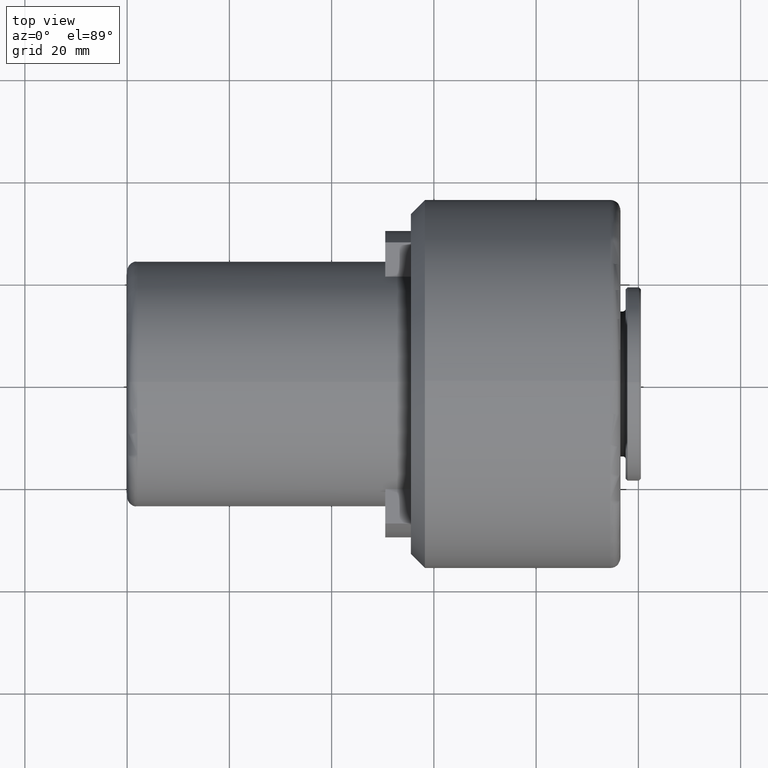
[diagram: clean part render]
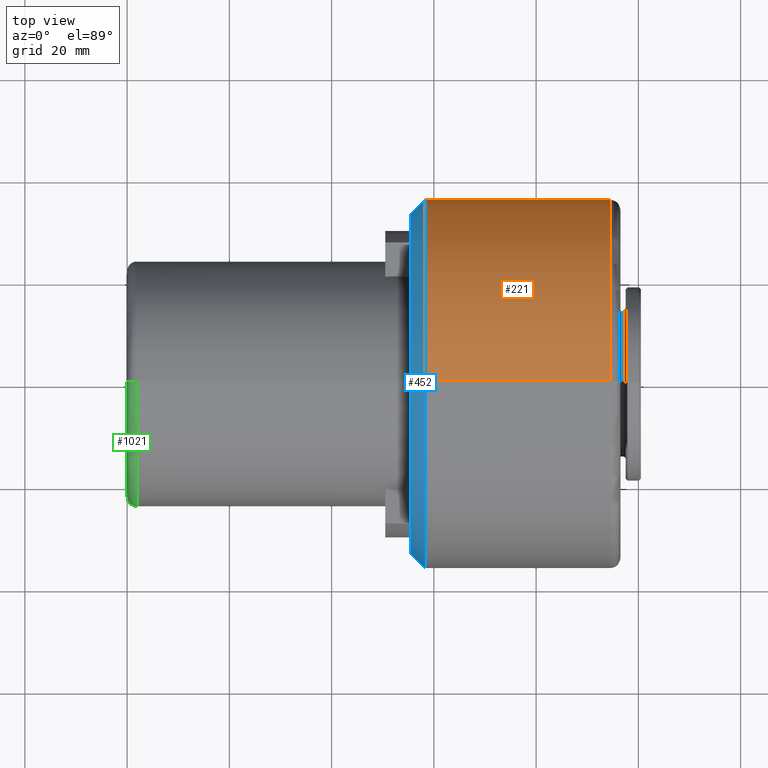
[diagram: same view with three faces highlighted in distinct colors, each labeled with its STEP entity id]
A machine part, top view with three faces highlighted in distinct colors.
Their STEP definitions:

[orange] entity #221 — the highlighted cylindrical surface (partial cylindrical patch) has radius 36 mm, axis along (-1, 0, 0).
#18 = AXIS2_PLACEMENT_3D ( 'NONE', #924, #435, #560 ) ;
#30 = VERTEX_POINT ( 'NONE', #1229 ) ;
#66 = LINE ( 'NONE', #957, #613 ) ;
#96 = LINE ( 'NONE', #108, #1193 ) ;
#108 = CARTESIAN_POINT ( 'NONE',  ( 73.59999999999999400, 0.0000000000000000000, 36.00000000000001400 ) ) ;
#113 = CIRCLE ( 'NONE', #1301, 36.00000000000002800 ) ;
#126 = EDGE_CURVE ( 'NONE', #185, #604, #597, .T. ) ;
#184 = DIRECTION ( 'NONE',  ( 1.927470528863117600E-016, -8.881784197001252300E-016, -1.000000000000000000 ) ) ;
#185 = VERTEX_POINT ( 'NONE', #382 ) ;
#221 = ADVANCED_FACE ( 'NONE', ( #1106 ), #1066, .T. ) ;
#227 = VERTEX_POINT ( 'NONE', #1036 ) ;
#266 = VERTEX_POINT ( 'NONE', #1134 ) ;
#305 = ORIENTED_EDGE ( 'NONE', *, *, #126, .T. ) ;
#382 = CARTESIAN_POINT ( 'NONE',  ( 94.50000000000000000, 0.0000000000000000000, 36.00000000000001400 ) ) ;
#390 = DIRECTION ( 'NONE',  ( 1.927470528863117600E-016, 0.0000000000000000000, -1.000000000000000000 ) ) ;
#392 = EDGE_CURVE ( 'NONE', #30, #266, #1032, .T. ) ;
#420 = DIRECTION ( 'NONE',  ( -1.000000000000000000, 0.0000000000000000000, 0.0000000000000000000 ) ) ;
#435 = DIRECTION ( 'NONE',  ( -1.000000000000000000, 0.0000000000000000000, 0.0000000000000000000 ) ) ;
#437 = EDGE_CURVE ( 'NONE', #266, #227, #113, .T. ) ;
#491 = CARTESIAN_POINT ( 'NONE',  ( 94.50000000000000000, 4.408728476930472400E-015, -36.00000000000001400 ) ) ;
#509 = CARTESIAN_POINT ( 'NONE',  ( 58.25000000000001400, 0.0000000000000000000, 2.869467403871423700E-016 ) ) ;
#540 = ORIENTED_EDGE ( 'NONE', *, *, #1045, .T. ) ;
#544 = ORIENTED_EDGE ( 'NONE', *, *, #437, .F. ) ;
#560 = DIRECTION ( 'NONE',  ( 0.0000000000000000000, 0.0000000000000000000, 1.000000000000000000 ) ) ;
#597 = CIRCLE ( 'NONE', #18, 36.00000000000001400 ) ;
#604 = VERTEX_POINT ( 'NONE', #491 ) ;
#613 = VECTOR ( 'NONE', #1070, 1000.000000000000000 ) ;
#733 = DIRECTION ( 'NONE',  ( -1.000000000000000000, -0.0000000000000000000, -1.043442692316876300E-016 ) ) ;
#752 = DIRECTION ( 'NONE',  ( -1.000000000000000000, 0.0000000000000000000, 0.0000000000000000000 ) ) ;
#858 = EDGE_LOOP ( 'NONE', ( #305, #540, #544, #984, #1329 ) ) ;
#883 = DIRECTION ( 'NONE',  ( 0.0000000000000000000, 0.0000000000000000000, 1.000000000000000000 ) ) ;
#918 = DIRECTION ( 'NONE',  ( -1.000000000000000000, -0.0000000000000000000, -1.043442692316876300E-016 ) ) ;
#924 = CARTESIAN_POINT ( 'NONE',  ( 94.50000000000000000, 0.0000000000000000000, 0.0000000000000000000 ) ) ;
#926 = CARTESIAN_POINT ( 'NONE',  ( 58.25000000000001400, 0.0000000000000000000, 2.869467403871423700E-016 ) ) ;
#954 = AXIS2_PLACEMENT_3D ( 'NONE', #926, #733, #390 ) ;
#957 = CARTESIAN_POINT ( 'NONE',  ( 73.59999999999999400, 4.408728476930472400E-015, -36.00000000000001400 ) ) ;
#984 = ORIENTED_EDGE ( 'NONE', *, *, #392, .F. ) ;
#1032 = CIRCLE ( 'NONE', #954, 36.00000000000002800 ) ;
#1036 = CARTESIAN_POINT ( 'NONE',  ( 58.25000000000002100, 4.408728476930474800E-015, -36.00000000000002800 ) ) ;
#1041 = EDGE_CURVE ( 'NONE', #185, #30, #96, .T. ) ;
#1045 = EDGE_CURVE ( 'NONE', #604, #227, #66, .T. ) ;
#1066 = CYLINDRICAL_SURFACE ( 'NONE', #1157, 36.00000000000001400 ) ;
#1070 = DIRECTION ( 'NONE',  ( -1.000000000000000000, 0.0000000000000000000, 0.0000000000000000000 ) ) ;
#1106 = FACE_OUTER_BOUND ( 'NONE', #858, .T. ) ;
#1134 = CARTESIAN_POINT ( 'NONE',  ( 58.25000000000001400, 36.00000000000001400, 0.0000000000000000000 ) ) ;
#1157 = AXIS2_PLACEMENT_3D ( 'NONE', #1316, #420, #883 ) ;
#1193 = VECTOR ( 'NONE', #752, 1000.000000000000000 ) ;
#1229 = CARTESIAN_POINT ( 'NONE',  ( 58.25000000000000700, 0.0000000000000000000, 36.00000000000002800 ) ) ;
#1301 = AXIS2_PLACEMENT_3D ( 'NONE', #509, #918, #184 ) ;
#1316 = CARTESIAN_POINT ( 'NONE',  ( 73.59999999999999400, 0.0000000000000000000, 0.0000000000000000000 ) ) ;
#1329 = ORIENTED_EDGE ( 'NONE', *, *, #1041, .F. ) ;

[blue] entity #452 — the highlighted conical surface has half-angle 45 deg.
#30 = VERTEX_POINT ( 'NONE', #1229 ) ;
#87 = CARTESIAN_POINT ( 'NONE',  ( 58.25000000000001400, -36.00000000000001400, 4.408728476930473200E-015 ) ) ;
#152 = EDGE_CURVE ( 'NONE', #190, #30, #803, .T. ) ;
#161 = CARTESIAN_POINT ( 'NONE',  ( 58.25000000000001400, 0.0000000000000000000, 2.869467403871423700E-016 ) ) ;
#164 = DIRECTION ( 'NONE',  ( 0.0000000000000000000, 1.000000000000000000, 0.0000000000000000000 ) ) ;
#190 = VERTEX_POINT ( 'NONE', #87 ) ;
#213 = EDGE_CURVE ( 'NONE', #547, #190, #852, .T. ) ;
#220 = ORIENTED_EDGE ( 'NONE', *, *, #384, .T. ) ;
#262 = CIRCLE ( 'NONE', #670, 33.24999999999999300 ) ;
#266 = VERTEX_POINT ( 'NONE', #1134 ) ;
#378 = CARTESIAN_POINT ( 'NONE',  ( 55.49999999999999300, -33.24999999999999300, 4.240339542047711600E-015 ) ) ;
#384 = EDGE_CURVE ( 'NONE', #431, #547, #262, .T. ) ;
#390 = DIRECTION ( 'NONE',  ( 1.927470528863117600E-016, 0.0000000000000000000, -1.000000000000000000 ) ) ;
#392 = EDGE_CURVE ( 'NONE', #30, #266, #1032, .T. ) ;
#393 = DIRECTION ( 'NONE',  ( 0.7071067811865485700, -0.7071067811865465700, 8.659560562354924200E-017 ) ) ;
#431 = VERTEX_POINT ( 'NONE', #937 ) ;
#452 = ADVANCED_FACE ( 'NONE', ( #931 ), #637, .T. ) ;
#533 = VECTOR ( 'NONE', #685, 1000.000000000000000 ) ;
#539 = EDGE_LOOP ( 'NONE', ( #220, #995, #869, #1256, #998 ) ) ;
#547 = VERTEX_POINT ( 'NONE', #378 ) ;
#586 = VECTOR ( 'NONE', #393, 1000.000000000000000 ) ;
#616 = DIRECTION ( 'NONE',  ( 0.0000000000000000000, 1.000000000000000000, 0.0000000000000000000 ) ) ;
#637 = CONICAL_SURFACE ( 'NONE', #1167, 36.00000000000002100, 0.7853981633974470600 ) ;
#670 = AXIS2_PLACEMENT_3D ( 'NONE', #1296, #1037, #164 ) ;
#685 = DIRECTION ( 'NONE',  ( 0.7071067811865483500, 0.7071067811865468000, 0.0000000000000000000 ) ) ;
#733 = DIRECTION ( 'NONE',  ( -1.000000000000000000, -0.0000000000000000000, -1.043442692316876300E-016 ) ) ;
#803 = CIRCLE ( 'NONE', #895, 36.00000000000002800 ) ;
#816 = DIRECTION ( 'NONE',  ( 1.000000000000000000, 9.637352644315590300E-017, -0.0000000000000000000 ) ) ;
#852 = LINE ( 'NONE', #1345, #586 ) ;
#869 = ORIENTED_EDGE ( 'NONE', *, *, #152, .T. ) ;
#895 = AXIS2_PLACEMENT_3D ( 'NONE', #161, #1174, #1048 ) ;
#926 = CARTESIAN_POINT ( 'NONE',  ( 58.25000000000001400, 0.0000000000000000000, 2.869467403871423700E-016 ) ) ;
#931 = FACE_OUTER_BOUND ( 'NONE', #539, .T. ) ;
#937 = CARTESIAN_POINT ( 'NONE',  ( 55.49999999999999300, 33.24999999999999300, 0.0000000000000000000 ) ) ;
#954 = AXIS2_PLACEMENT_3D ( 'NONE', #926, #733, #390 ) ;
#995 = ORIENTED_EDGE ( 'NONE', *, *, #213, .T. ) ;
#998 = ORIENTED_EDGE ( 'NONE', *, *, #1221, .F. ) ;
#1006 = CARTESIAN_POINT ( 'NONE',  ( 58.25000000000002100, 0.0000000000000000000, 0.0000000000000000000 ) ) ;
#1032 = CIRCLE ( 'NONE', #954, 36.00000000000002800 ) ;
#1037 = DIRECTION ( 'NONE',  ( 1.000000000000000000, 9.637352644315590300E-017, -0.0000000000000000000 ) ) ;
#1048 = DIRECTION ( 'NONE',  ( 1.927470528863117600E-016, 0.0000000000000000000, -1.000000000000000000 ) ) ;
#1051 = LINE ( 'NONE', #1103, #533 ) ;
#1103 = CARTESIAN_POINT ( 'NONE',  ( 58.25000000000002100, 36.00000000000002100, 0.0000000000000000000 ) ) ;
#1134 = CARTESIAN_POINT ( 'NONE',  ( 58.25000000000001400, 36.00000000000001400, 0.0000000000000000000 ) ) ;
#1167 = AXIS2_PLACEMENT_3D ( 'NONE', #1006, #816, #616 ) ;
#1174 = DIRECTION ( 'NONE',  ( -1.000000000000000000, -0.0000000000000000000, -1.043442692316876300E-016 ) ) ;
#1221 = EDGE_CURVE ( 'NONE', #431, #266, #1051, .T. ) ;
#1229 = CARTESIAN_POINT ( 'NONE',  ( 58.25000000000000700, 0.0000000000000000000, 36.00000000000002800 ) ) ;
#1256 = ORIENTED_EDGE ( 'NONE', *, *, #392, .T. ) ;
#1296 = CARTESIAN_POINT ( 'NONE',  ( 55.49999999999999300, -2.650271977186816100E-016, 0.0000000000000000000 ) ) ;
#1345 = CARTESIAN_POINT ( 'NONE',  ( 58.25000000000002100, -36.00000000000002100, 4.408728476930474000E-015 ) ) ;

[green] entity #1021 — the highlighted toroidal blend (fillet) surface has major radius 22 mm and minor (blend) radius 2 mm.
#6 = CIRCLE ( 'NONE', #1261, 22.00000000000000000 ) ;
#8 = CIRCLE ( 'NONE', #1087, 2.000000000000001800 ) ;
#14 = ORIENTED_EDGE ( 'NONE', *, *, #1187, .F. ) ;
#44 = CARTESIAN_POINT ( 'NONE',  ( 0.0000000000000000000, 2.816687638038912400E-015, -22.00000000000000700 ) ) ;
#47 = CIRCLE ( 'NONE', #165, 24.00000000000000000 ) ;
#72 = CARTESIAN_POINT ( 'NONE',  ( 2.000000000000001800, 0.0000000000000000000, 23.99999999999999300 ) ) ;
#75 = CARTESIAN_POINT ( 'NONE',  ( 0.0000000000000000000, 0.0000000000000000000, -7.733975497063264400E-015 ) ) ;
#101 = DIRECTION ( 'NONE',  ( -1.000000000000000000, 0.0000000000000000000, 0.0000000000000000000 ) ) ;
#106 = AXIS2_PLACEMENT_3D ( 'NONE', #251, #981, #364 ) ;
#107 = EDGE_CURVE ( 'NONE', #724, #350, #47, .T. ) ;
#109 = CARTESIAN_POINT ( 'NONE',  ( 2.000000000000001800, 0.0000000000000000000, 21.99999999999999300 ) ) ;
#138 = EDGE_CURVE ( 'NONE', #724, #1139, #8, .T. ) ;
#165 = AXIS2_PLACEMENT_3D ( 'NONE', #473, #1116, #535 ) ;
#191 = DIRECTION ( 'NONE',  ( 0.0000000000000000000, 0.0000000000000000000, 1.000000000000000000 ) ) ;
#251 = CARTESIAN_POINT ( 'NONE',  ( 2.000000000000001800, 2.694222958124176800E-015, -22.00000000000000700 ) ) ;
#308 = DIRECTION ( 'NONE',  ( 0.0000000000000000000, -1.000000000000000000, 0.0000000000000000000 ) ) ;
#350 = VERTEX_POINT ( 'NONE', #1383 ) ;
#364 = DIRECTION ( 'NONE',  ( 0.0000000000000000000, -1.224646799147351500E-016, 1.000000000000000000 ) ) ;
#470 = ORIENTED_EDGE ( 'NONE', *, *, #727, .F. ) ;
#473 = CARTESIAN_POINT ( 'NONE',  ( 2.000000000000001800, 0.0000000000000000000, -7.733975497063264400E-015 ) ) ;
#535 = DIRECTION ( 'NONE',  ( 0.0000000000000000000, 0.0000000000000000000, 1.000000000000000000 ) ) ;
#546 = CIRCLE ( 'NONE', #106, 2.000000000000001800 ) ;
#626 = DIRECTION ( 'NONE',  ( 0.0000000000000000000, 0.0000000000000000000, -1.000000000000000000 ) ) ;
#705 = FACE_OUTER_BOUND ( 'NONE', #730, .T. ) ;
#724 = VERTEX_POINT ( 'NONE', #72 ) ;
#727 = EDGE_CURVE ( 'NONE', #1307, #1139, #6, .T. ) ;
#730 = EDGE_LOOP ( 'NONE', ( #14, #742, #1183, #470 ) ) ;
#742 = ORIENTED_EDGE ( 'NONE', *, *, #107, .F. ) ;
#801 = TOROIDAL_SURFACE ( 'NONE', #856, 22.00000000000000000, 2.000000000000000000 ) ;
#825 = DIRECTION ( 'NONE',  ( -1.000000000000000000, 0.0000000000000000000, 0.0000000000000000000 ) ) ;
#855 = DIRECTION ( 'NONE',  ( 0.0000000000000000000, 0.0000000000000000000, 1.000000000000000000 ) ) ;
#856 = AXIS2_PLACEMENT_3D ( 'NONE', #1278, #101, #855 ) ;
#981 = DIRECTION ( 'NONE',  ( 0.0000000000000000000, 1.000000000000000000, 1.224646799147353200E-016 ) ) ;
#1021 = ADVANCED_FACE ( 'NONE', ( #705 ), #801, .T. ) ;
#1087 = AXIS2_PLACEMENT_3D ( 'NONE', #109, #308, #626 ) ;
#1116 = DIRECTION ( 'NONE',  ( 1.000000000000000000, -0.0000000000000000000, -0.0000000000000000000 ) ) ;
#1139 = VERTEX_POINT ( 'NONE', #1297 ) ;
#1183 = ORIENTED_EDGE ( 'NONE', *, *, #138, .T. ) ;
#1187 = EDGE_CURVE ( 'NONE', #350, #1307, #546, .T. ) ;
#1261 = AXIS2_PLACEMENT_3D ( 'NONE', #75, #825, #191 ) ;
#1278 = CARTESIAN_POINT ( 'NONE',  ( 2.000000000000001800, 0.0000000000000000000, -7.733975497063264400E-015 ) ) ;
#1297 = CARTESIAN_POINT ( 'NONE',  ( 0.0000000000000000000, 0.0000000000000000000, 21.99999999999999300 ) ) ;
#1307 = VERTEX_POINT ( 'NONE', #44 ) ;
#1383 = CARTESIAN_POINT ( 'NONE',  ( 2.000000000000001800, 2.939152317953648700E-015, -24.00000000000001100 ) ) ;